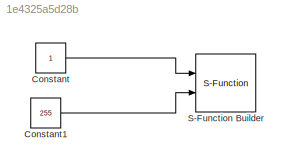
MODEL slx_1e4325a5d28b
KIND model
BLOCK [Constant] Constant
  OutDataTypeStr = uint8
BLOCK [Constant] Constant1
  OutDataTypeStr = uint8
  Value = 255
BLOCK [S-Function] S-Function Builder
  CopyFcn = set_param(gcbh,'LinkStatus','none')
  EnableBusSupport = off
  FunctionName = sfAFMotor
  InitFcn = try, set_param(gcb,'FunctionName','sfAFMotor'), end
  OpenFcn = sfunctionwizard(gcbh)
  Ports = [2]
  PreSaveFcn = try, set_param(gcb,'FunctionName','sfAFMotor'), end
  SFunctionModules = sfAFMotor_wrapper
LINE Constant1:1 -> S-Function Builder:2
LINE Constant:1 -> S-Function Builder:1
